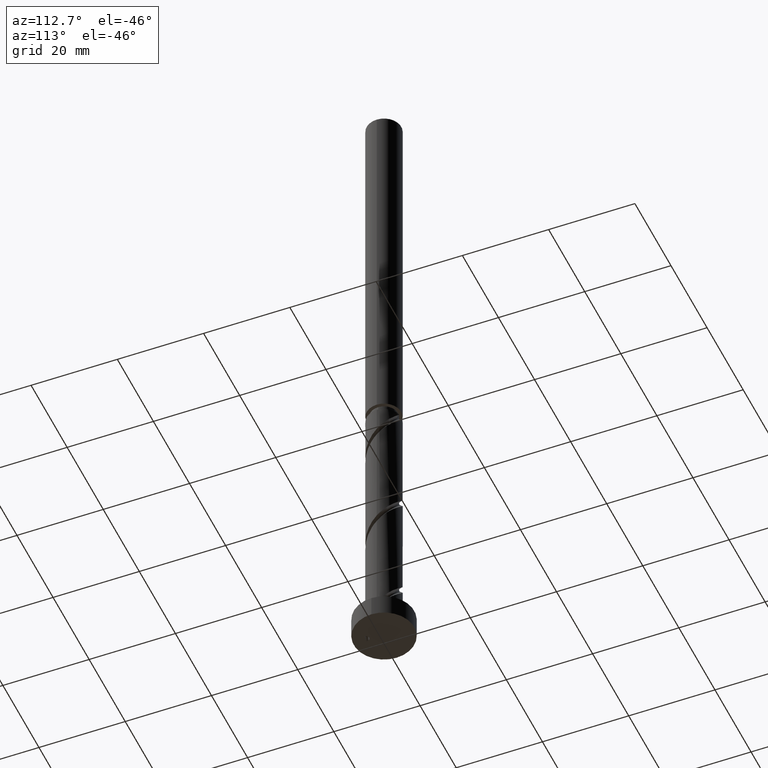
[diagram: clean part render]
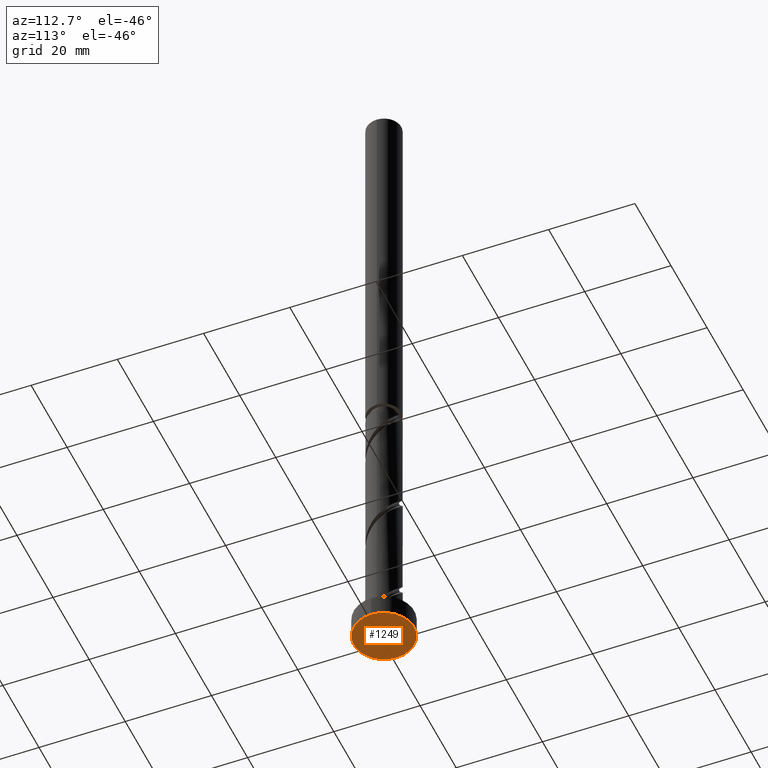
[diagram: same view with one face highlighted and labeled with its STEP entity id]
A machine part, auxiliary view. The second image highlights one B-rep face of the part: STEP entity #1249.
In plain terms, the highlighted planar face has unit normal (0, 0, 1).
Its self-contained STEP definition (entity closure, byte-faithful):
#25 = CARTESIAN_POINT ( 'NONE',  ( 0.000000000000000000, 0.000000000000000000, 0.000000000000000000 ) ) ;
#138 = CARTESIAN_POINT ( 'NONE',  ( 1.575852516779192580, -3.762537554013330787, 1.279434868884676184E-15 ) ) ;
#184 = CARTESIAN_POINT ( 'NONE',  ( 7.000000000000000000, 8.572527594031473190E-16, 0.000000000000000000 ) ) ;
#244 = CARTESIAN_POINT ( 'NONE',  ( 0.000000000000000000, 0.000000000000000000, 0.000000000000000000 ) ) ;
#393 = EDGE_CURVE ( 'NONE', #1074, #772, #1580, .T. ) ;
#418 = CARTESIAN_POINT ( 'NONE',  ( 1.575852516779192580, -3.762537554013330787, 1.279434868884676184E-15 ) ) ;
#436 =( BOUNDED_CURVE ( )  B_SPLINE_CURVE ( 1, ( #138, #753 ),
 .UNSPECIFIED., .F., .T. ) 
 B_SPLINE_CURVE_WITH_KNOTS ( ( 2, 2 ),
 ( 0.000000000000000000, 0.001599999999999940012 ),
 .UNSPECIFIED. ) 
 CURVE ( )  GEOMETRIC_REPRESENTATION_ITEM ( )  RATIONAL_B_SPLINE_CURVE ( ( 0.9957033246881877853, 0.9957033246881877853 ) ) 
 REPRESENTATION_ITEM ( '' )  );
#442 = EDGE_LOOP ( 'NONE', ( #1697, #747 ) ) ;
#454 = CARTESIAN_POINT ( 'NONE',  ( 0.007503263944899470766, -4.079208710158160223, -5.809178745106169959E-14 ) ) ;
#458 = CARTESIAN_POINT ( 'NONE',  ( 0.007503263944899470766, -4.079208710158160223, -5.809178745106169959E-14 ) ) ;
#466 = EDGE_CURVE ( 'NONE', #834, #1544, #832, .T. ) ;
#538 = CARTESIAN_POINT ( 'NONE',  ( 0.000000000000000000, 0.000000000000000000, 0.000000000000000000 ) ) ;
#642 = DIRECTION ( 'NONE',  ( 0.000000000000000000, 0.000000000000000000, 1.000000000000000000 ) ) ;
#740 = EDGE_LOOP ( 'NONE', ( #807, #1805 ) ) ;
#747 = ORIENTED_EDGE ( 'NONE', *, *, #1013, .F. ) ;
#753 = CARTESIAN_POINT ( 'NONE',  ( 0.007503263944899470766, -4.079208710158160223, -5.809178745106169959E-14 ) ) ;
#772 = VERTEX_POINT ( 'NONE', #1770 ) ;
#807 = ORIENTED_EDGE ( 'NONE', *, *, #1736, .F. ) ;
#832 =( BOUNDED_CURVE ( )  B_SPLINE_CURVE ( 3, ( #458, #1071, #1783, #418 ),
 .UNSPECIFIED., .F., .T. ) 
 B_SPLINE_CURVE_WITH_KNOTS ( ( 4, 4 ),
 ( 1.735544051861192928E-18, 0.002501316663082336390 ),
 .UNSPECIFIED. ) 
 CURVE ( )  GEOMETRIC_REPRESENTATION_ITEM ( )  RATIONAL_B_SPLINE_CURVE ( ( 0.9957033246881877853, 0.3319011082293960024, 0.3319011082293960024, 0.9957033246881877853 ) ) 
 REPRESENTATION_ITEM ( '' )  );
#834 = VERTEX_POINT ( 'NONE', #454 ) ;
#1013 = EDGE_CURVE ( 'NONE', #1544, #834, #436, .T. ) ;
#1027 = CIRCLE ( 'NONE', #1503, 7.000000000000000000 ) ;
#1071 = CARTESIAN_POINT ( 'NONE',  ( -0.3091678921998847751, -2.510859457323865840, 1.245407345776040872E-15 ) ) ;
#1074 = VERTEX_POINT ( 'NONE', #184 ) ;
#1110 = CARTESIAN_POINT ( 'NONE',  ( 1.575852516779192580, -3.762537554013330787, 1.279434868884676184E-15 ) ) ;
#1117 = FACE_OUTER_BOUND ( 'NONE', #740, .T. ) ;
#1145 = FACE_BOUND ( 'NONE', #442, .T. ) ;
#1165 = DIRECTION ( 'NONE',  ( 0.000000000000000000, 0.000000000000000000, 1.000000000000000000 ) ) ;
#1249 = ADVANCED_FACE ( 'NONE', ( #1117, #1145 ), #1305, .F. ) ;
#1260 = DIRECTION ( 'NONE',  ( 1.000000000000000000, 0.000000000000000000, 0.000000000000000000 ) ) ;
#1305 = PLANE ( 'NONE',  #1719 ) ;
#1326 = DIRECTION ( 'NONE',  ( 1.000000000000000000, 0.000000000000000000, 0.000000000000000000 ) ) ;
#1399 = AXIS2_PLACEMENT_3D ( 'NONE', #25, #642, #1260 ) ;
#1503 = AXIS2_PLACEMENT_3D ( 'NONE', #244, #1165, #1326 ) ;
#1544 = VERTEX_POINT ( 'NONE', #1110 ) ;
#1580 = CIRCLE ( 'NONE', #1399, 7.000000000000000000 ) ;
#1697 = ORIENTED_EDGE ( 'NONE', *, *, #466, .F. ) ;
#1719 = AXIS2_PLACEMENT_3D ( 'NONE', #538, #1748, #1725 ) ;
#1725 = DIRECTION ( 'NONE',  ( 1.000000000000000000, 0.000000000000000000, -0.000000000000000000 ) ) ;
#1736 = EDGE_CURVE ( 'NONE', #772, #1074, #1027, .T. ) ;
#1748 = DIRECTION ( 'NONE',  ( 0.000000000000000000, 0.000000000000000000, 1.000000000000000000 ) ) ;
#1770 = CARTESIAN_POINT ( 'NONE',  ( -7.000000000000000000, 0.000000000000000000, 0.000000000000000000 ) ) ;
#1783 = CARTESIAN_POINT ( 'NONE',  ( 1.259181360634409774, -2.194188301179024414, 1.245407345776040872E-15 ) ) ;
#1805 = ORIENTED_EDGE ( 'NONE', *, *, #393, .F. ) ;